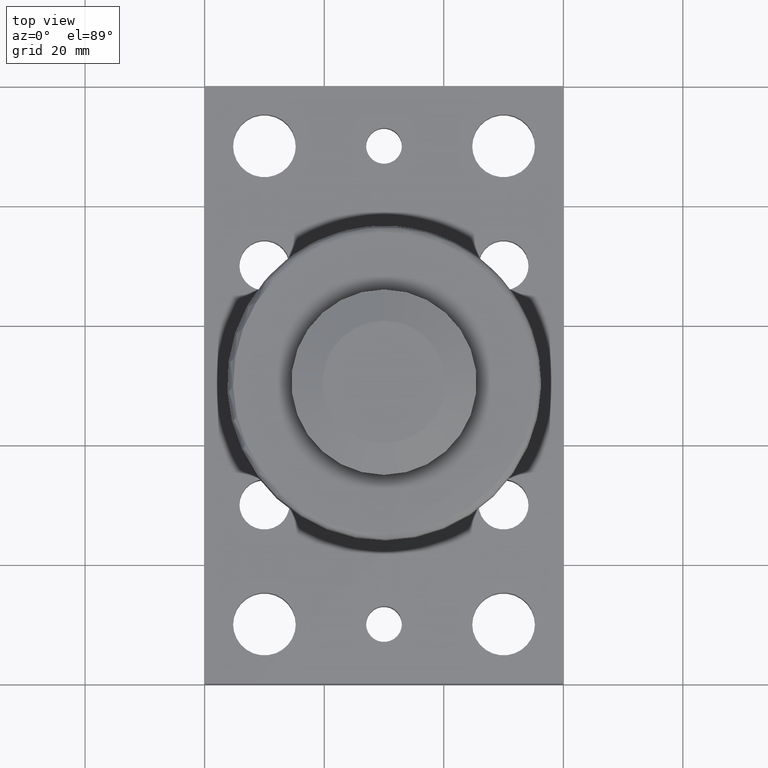
[diagram: clean part render]
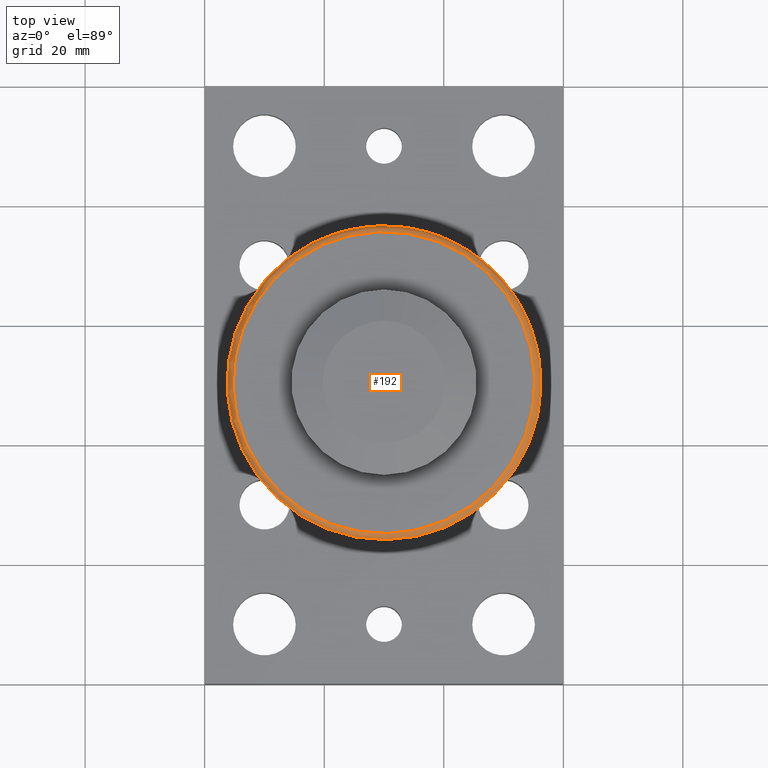
[diagram: same view with one face highlighted and labeled with its STEP entity id]
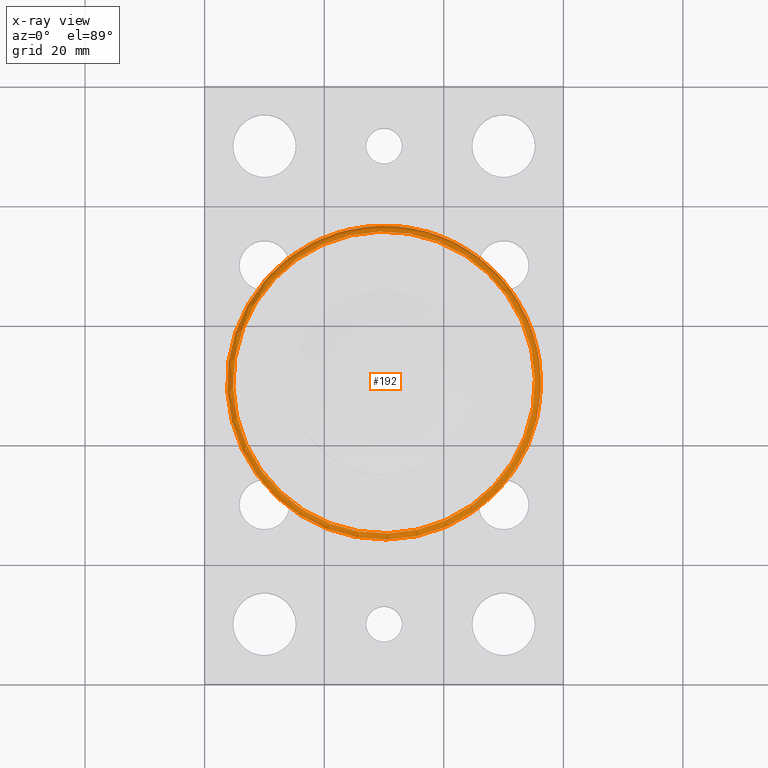
[diagram: x-ray of the same camera — body ghosted, the highlighted face saturated]
A machine part, top view. The second image highlights one B-rep face of the part: STEP entity #192.
The next image is the same camera in x-ray: the body ghosted, the highlighted face saturated — about 0% of this face is hidden behind the body in this view.
In plain terms, the highlighted toroidal blend (fillet) surface has major radius 25.25 mm and minor (blend) radius 1 mm.
Its self-contained STEP definition (entity closure, byte-faithful):
#158=CARTESIAN_POINT('',(16.027586957531046,27.777619979609653,31.000000000000032));
#159=VERTEX_POINT('',#158);
#160=CARTESIAN_POINT('',(30.0,49.999999999999993,31.00000000000005));
#161=DIRECTION('',(0.0,0.0,1.0));
#162=DIRECTION('',(0.532282401617865,0.846566857919632,0.0));
#163=AXIS2_PLACEMENT_3D('',#160,#161,#162);
#164=CIRCLE('',#163,26.250000000000004);
#165=EDGE_CURVE('',#159,#159,#164,.T.);
#173=CARTESIAN_POINT('',(30.0,49.999999999999993,31.00000000000005));
#174=DIRECTION('',(0.0,0.0,-1.0));
#175=DIRECTION('',(-1.0,0.0,0.0));
#176=AXIS2_PLACEMENT_3D('',#173,#174,#175);
#177=TOROIDAL_SURFACE('',#176,25.250000000000004,1.0);
#178=CARTESIAN_POINT('',(16.559869359148905,28.624186837529287,32.000000000000028));
#179=VERTEX_POINT('',#178);
#180=CARTESIAN_POINT('',(30.0,49.999999999999993,32.000000000000057));
#181=DIRECTION('',(0.0,0.0,-1.0));
#182=DIRECTION('',(0.532282401617865,0.846566857919632,0.0));
#183=AXIS2_PLACEMENT_3D('',#180,#181,#182);
#184=CIRCLE('',#183,25.25);
#185=EDGE_CURVE('',#179,#179,#184,.T.);
#186=ORIENTED_EDGE('',*,*,#185,.T.);
#187=EDGE_LOOP('',(#186));
#188=FACE_OUTER_BOUND('',#187,.T.);
#189=ORIENTED_EDGE('',*,*,#165,.T.);
#190=EDGE_LOOP('',(#189));
#191=FACE_BOUND('',#190,.T.);
#192=ADVANCED_FACE('',(#188,#191),#177,.T.);